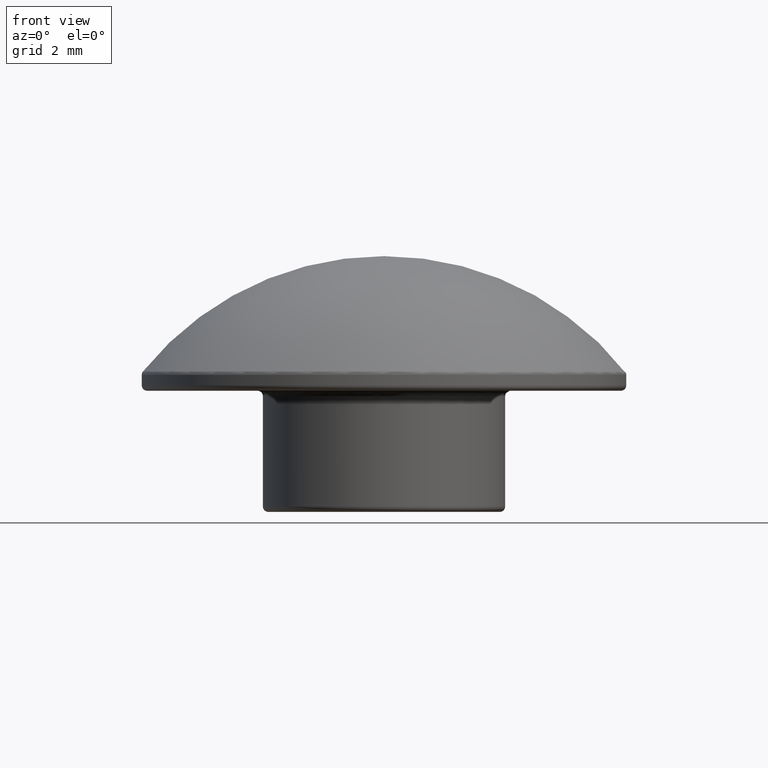
[diagram: clean part render]
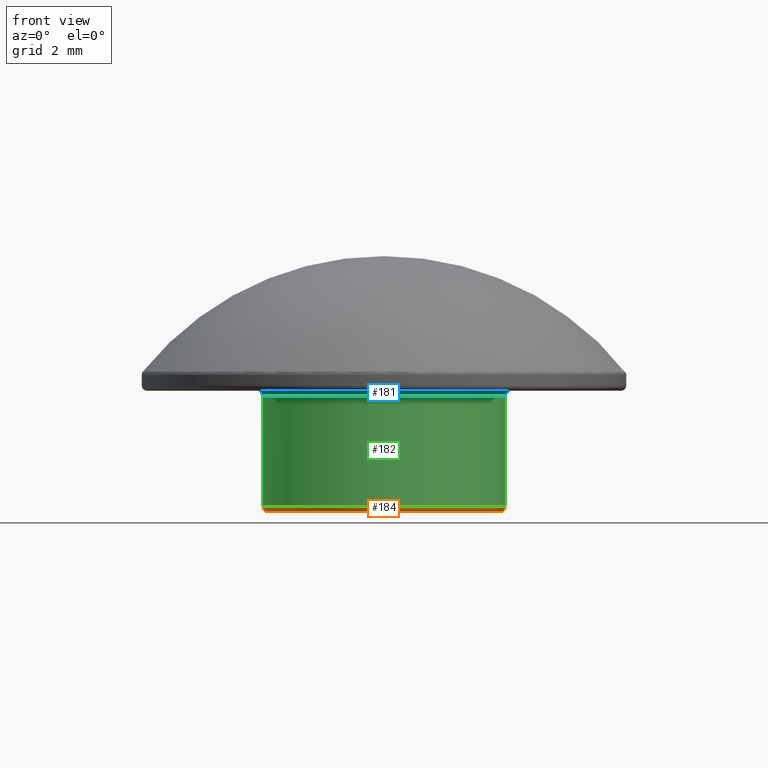
[diagram: same view with three faces highlighted in distinct colors, each labeled with its STEP entity id]
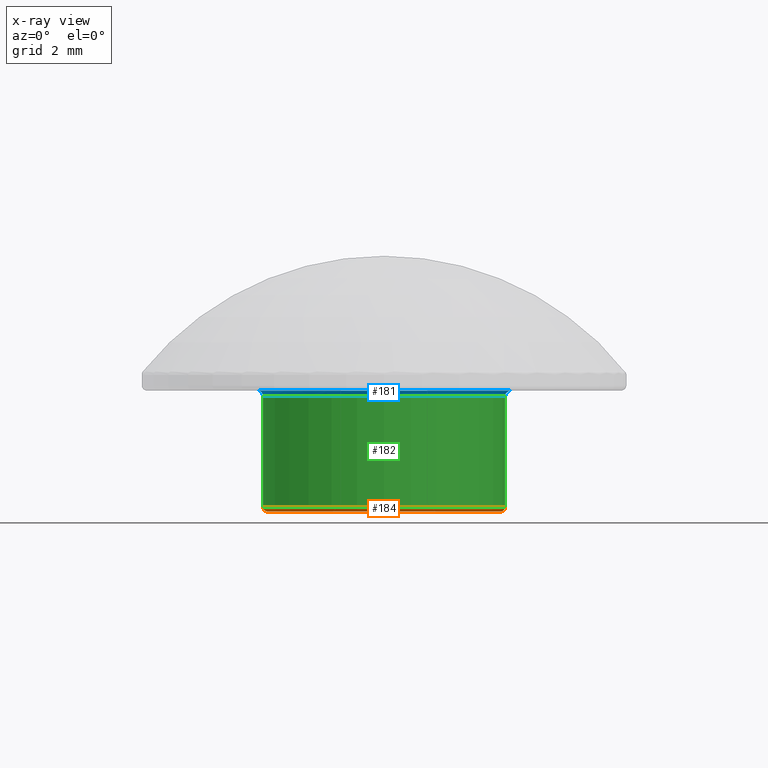
[diagram: x-ray of the same camera — body ghosted, the three highlighted faces saturated]
A machine part, front view with three faces highlighted in distinct colors.
The next image is the same camera in x-ray (body ghosted, the three faces saturated) — at least one of them is partly hidden behind the body in this view.
Their STEP definitions:

[orange] entity #184 — the highlighted toroidal blend (fillet) surface has major radius 4.3 mm and minor (blend) radius 0.2 mm.
#36=FACE_OUTER_BOUND('',#49,.T.);
#49=EDGE_LOOP('',(#137,#138,#139,#140,#141,#142));
#62=CIRCLE('',#218,4.5);
#63=CIRCLE('',#219,4.5);
#66=CIRCLE('',#224,4.3);
#67=CIRCLE('',#225,0.2);
#68=CIRCLE('',#226,4.3);
#83=VERTEX_POINT('',#329);
#84=VERTEX_POINT('',#330);
#87=VERTEX_POINT('',#340);
#88=VERTEX_POINT('',#341);
#102=EDGE_CURVE('',#83,#84,#62,.T.);
#104=EDGE_CURVE('',#84,#83,#63,.T.);
#107=EDGE_CURVE('',#87,#88,#66,.T.);
#108=EDGE_CURVE('',#88,#84,#67,.T.);
#109=EDGE_CURVE('',#88,#87,#68,.T.);
#137=ORIENTED_EDGE('',*,*,#107,.T.);
#138=ORIENTED_EDGE('',*,*,#108,.T.);
#139=ORIENTED_EDGE('',*,*,#104,.T.);
#140=ORIENTED_EDGE('',*,*,#102,.T.);
#141=ORIENTED_EDGE('',*,*,#108,.F.);
#142=ORIENTED_EDGE('',*,*,#109,.T.);
#178=TOROIDAL_SURFACE('',#223,4.3,0.2);
#184=ADVANCED_FACE('',(#36),#178,.T.);
#218=AXIS2_PLACEMENT_3D('',#331,#259,#260);
#219=AXIS2_PLACEMENT_3D('',#333,#262,#263);
#223=AXIS2_PLACEMENT_3D('',#339,#270,#271);
#224=AXIS2_PLACEMENT_3D('',#342,#272,#273);
#225=AXIS2_PLACEMENT_3D('',#343,#274,#275);
#226=AXIS2_PLACEMENT_3D('',#344,#276,#277);
#259=DIRECTION('center_axis',(0.,0.,-1.));
#260=DIRECTION('ref_axis',(1.,0.,0.));
#262=DIRECTION('center_axis',(0.,0.,-1.));
#263=DIRECTION('ref_axis',(1.,0.,0.));
#270=DIRECTION('center_axis',(0.,0.,-1.));
#271=DIRECTION('ref_axis',(-1.,0.,0.));
#272=DIRECTION('center_axis',(0.,0.,1.));
#273=DIRECTION('ref_axis',(1.,0.,0.));
#274=DIRECTION('center_axis',(-1.22464679914735E-16,-1.,0.));
#275=DIRECTION('ref_axis',(1.,-1.22464679914735E-16,0.));
#276=DIRECTION('center_axis',(0.,0.,1.));
#277=DIRECTION('ref_axis',(1.,0.,0.));
#329=CARTESIAN_POINT('',(-4.5,5.51091059616309E-16,2.2));
#330=CARTESIAN_POINT('',(4.5,-5.51091059616309E-16,2.2));
#331=CARTESIAN_POINT('Origin',(0.,0.,2.2));
#333=CARTESIAN_POINT('Origin',(0.,0.,2.2));
#339=CARTESIAN_POINT('Origin',(0.,0.,2.2));
#340=CARTESIAN_POINT('',(-4.3,-5.26598123633362E-16,2.));
#341=CARTESIAN_POINT('',(4.3,-5.26598123633362E-16,2.));
#342=CARTESIAN_POINT('Origin',(0.,0.,2.));
#343=CARTESIAN_POINT('Origin',(4.3,-5.26598123633362E-16,2.2));
#344=CARTESIAN_POINT('Origin',(0.,0.,2.));

[blue] entity #181 — the highlighted toroidal blend (fillet) surface has major radius 4.7 mm and minor (blend) radius 0.2 mm.
#33=FACE_OUTER_BOUND('',#45,.T.);
#45=EDGE_LOOP('',(#125,#126,#127,#128));
#59=CIRCLE('',#214,4.5);
#60=CIRCLE('',#215,0.2);
#61=CIRCLE('',#216,4.7);
#81=VERTEX_POINT('',#323);
#82=VERTEX_POINT('',#325);
#99=EDGE_CURVE('',#81,#81,#59,.T.);
#100=EDGE_CURVE('',#81,#82,#60,.T.);
#101=EDGE_CURVE('',#82,#82,#61,.T.);
#125=ORIENTED_EDGE('',*,*,#99,.T.);
#126=ORIENTED_EDGE('',*,*,#100,.T.);
#127=ORIENTED_EDGE('',*,*,#101,.T.);
#128=ORIENTED_EDGE('',*,*,#100,.F.);
#177=TOROIDAL_SURFACE('',#213,4.7,0.2);
#181=ADVANCED_FACE('',(#33),#177,.F.);
#213=AXIS2_PLACEMENT_3D('',#322,#249,#250);
#214=AXIS2_PLACEMENT_3D('',#324,#251,#252);
#215=AXIS2_PLACEMENT_3D('',#326,#253,#254);
#216=AXIS2_PLACEMENT_3D('',#327,#255,#256);
#249=DIRECTION('center_axis',(0.,0.,1.));
#250=DIRECTION('ref_axis',(1.,0.,0.));
#251=DIRECTION('center_axis',(0.,0.,1.));
#252=DIRECTION('ref_axis',(1.,0.,0.));
#253=DIRECTION('center_axis',(1.22464679914735E-16,-1.,0.));
#254=DIRECTION('ref_axis',(-1.,-1.22464679914735E-16,0.));
#255=DIRECTION('center_axis',(0.,0.,-1.));
#256=DIRECTION('ref_axis',(1.,0.,0.));
#322=CARTESIAN_POINT('Origin',(0.,0.,6.3));
#323=CARTESIAN_POINT('',(-4.5,-5.51091059616309E-16,6.3));
#324=CARTESIAN_POINT('Origin',(0.,0.,6.3));
#325=CARTESIAN_POINT('',(-4.7,5.75583995599256E-16,6.5));
#326=CARTESIAN_POINT('Origin',(-4.7,-5.75583995599256E-16,6.3));
#327=CARTESIAN_POINT('Origin',(0.,0.,6.5));

[green] entity #182 — the highlighted cylindrical surface (bore or boss wall) has radius 4.5 mm, axis along (0, 0, -1).
#22=LINE('',#332,#26);
#26=VECTOR('',#261,4.5);
#30=CYLINDRICAL_SURFACE('',#217,4.5);
#34=FACE_OUTER_BOUND('',#46,.T.);
#46=EDGE_LOOP('',(#129,#130,#131,#132,#133));
#59=CIRCLE('',#214,4.5);
#62=CIRCLE('',#218,4.5);
#63=CIRCLE('',#219,4.5);
#81=VERTEX_POINT('',#323);
#83=VERTEX_POINT('',#329);
#84=VERTEX_POINT('',#330);
#99=EDGE_CURVE('',#81,#81,#59,.T.);
#102=EDGE_CURVE('',#83,#84,#62,.T.);
#103=EDGE_CURVE('',#83,#81,#22,.T.);
#104=EDGE_CURVE('',#84,#83,#63,.T.);
#129=ORIENTED_EDGE('',*,*,#102,.F.);
#130=ORIENTED_EDGE('',*,*,#103,.T.);
#131=ORIENTED_EDGE('',*,*,#99,.F.);
#132=ORIENTED_EDGE('',*,*,#103,.F.);
#133=ORIENTED_EDGE('',*,*,#104,.F.);
#182=ADVANCED_FACE('',(#34),#30,.T.);
#214=AXIS2_PLACEMENT_3D('',#324,#251,#252);
#217=AXIS2_PLACEMENT_3D('',#328,#257,#258);
#218=AXIS2_PLACEMENT_3D('',#331,#259,#260);
#219=AXIS2_PLACEMENT_3D('',#333,#262,#263);
#251=DIRECTION('center_axis',(0.,0.,1.));
#252=DIRECTION('ref_axis',(1.,0.,0.));
#257=DIRECTION('center_axis',(0.,0.,-1.));
#258=DIRECTION('ref_axis',(1.,0.,0.));
#259=DIRECTION('center_axis',(0.,0.,-1.));
#260=DIRECTION('ref_axis',(1.,0.,0.));
#261=DIRECTION('',(0.,0.,1.));
#262=DIRECTION('center_axis',(0.,0.,-1.));
#263=DIRECTION('ref_axis',(1.,0.,0.));
#323=CARTESIAN_POINT('',(-4.5,-5.51091059616309E-16,6.3));
#324=CARTESIAN_POINT('Origin',(0.,0.,6.3));
#328=CARTESIAN_POINT('Origin',(0.,0.,6.5));
#329=CARTESIAN_POINT('',(-4.5,5.51091059616309E-16,2.2));
#330=CARTESIAN_POINT('',(4.5,-5.51091059616309E-16,2.2));
#331=CARTESIAN_POINT('Origin',(0.,0.,2.2));
#332=CARTESIAN_POINT('',(-4.5,5.51091059616309E-16,6.5));
#333=CARTESIAN_POINT('Origin',(0.,0.,2.2));